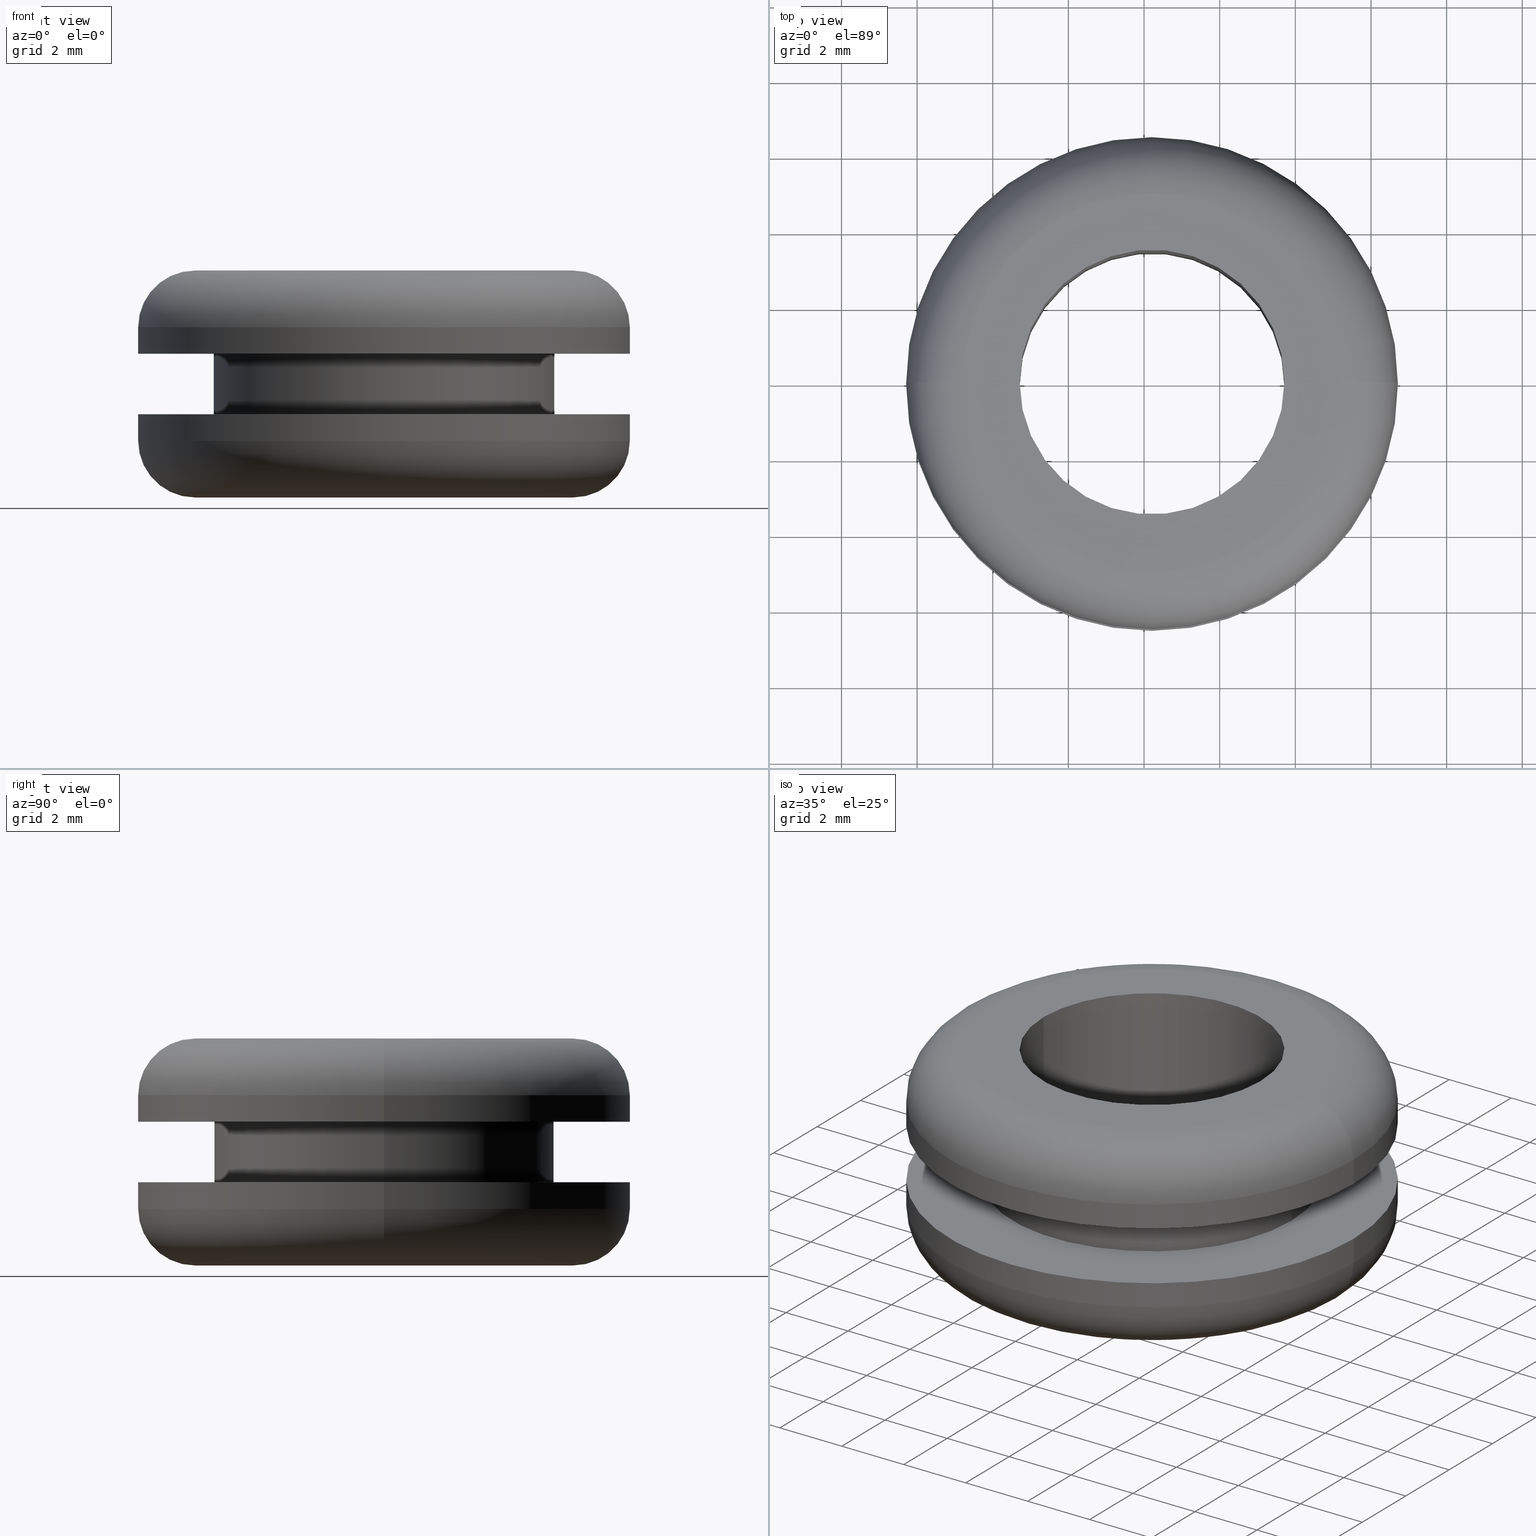
[diagram: canonical four-view strip — front | top / right | iso, engineering-drawing reading convention]
A machine part, canonical four-view strip (front | top / right | iso — engineering-drawing reading convention). The complete STEP part file that produces these views, byte-faithful:
ISO-10303-21;
HEADER;
FILE_DESCRIPTION (( 'STEP AP214' ),
    '1' );
FILE_NAME ('TM_346_8.STEP',
    '2018-06-13T02:53:19',
    ( '' ),
    ( '' ),
    'SwSTEP 2.0',
    'SolidWorks 2015',
    '' );
FILE_SCHEMA (( 'AUTOMOTIVE_DESIGN' ));
ENDSEC;

DATA;
#1 = CARTESIAN_POINT ( 'NONE',  ( 99.71049378546730700, 0.0000000000000000000, 141.7985603604342100 ) ) ;
#2 = AXIS2_PLACEMENT_3D ( 'NONE', #11, #206, #50 ) ;
#3 = CYLINDRICAL_SURFACE ( 'NONE', #84, 6.500000000019892500 ) ;
#4 = DIRECTION ( 'NONE',  ( 0.0000000000000000000, 0.0000000000000000000, -1.000000000000000000 ) ) ;
#5 = ADVANCED_FACE ( 'NONE', ( #397 ), #3, .T. ) ;
#6 = EDGE_LOOP ( 'NONE', ( #242, #103 ) ) ;
#7 = AXIS2_PLACEMENT_3D ( 'NONE', #57, #71, #428 ) ;
#8 = FACE_OUTER_BOUND ( 'NONE', #393, .T. ) ;
#9 = EDGE_CURVE ( 'NONE', #292, #150, #102, .T. ) ;
#10 = VERTEX_POINT ( 'NONE', #156 ) ;
#11 = CARTESIAN_POINT ( 'NONE',  ( 104.2104937854872000, 0.0000000000000000000, 142.4985603604342000 ) ) ;
#12 = DIRECTION ( 'NONE',  ( -1.000000000000000000, 0.0000000000000000000, 0.0000000000000000000 ) ) ;
#13 = ORIENTED_EDGE ( 'NONE', *, *, #14, .T. ) ;
#14 = EDGE_CURVE ( 'NONE', #70, #178, #327, .T. ) ;
#15 = UNCERTAINTY_MEASURE_WITH_UNIT (LENGTH_MEASURE( 1.000000000000000100E-005 ), #272, 'distance_accuracy_value', 'NONE');
#16 = FILL_AREA_STYLE ('',( #330 ) ) ;
#17 = ORIENTED_EDGE ( 'NONE', *, *, #185, .F. ) ;
#18 = EDGE_LOOP ( 'NONE', ( #231, #398, #39, #268 ) ) ;
#19 = AXIS2_PLACEMENT_3D ( 'NONE', #220, #447, #409 ) ;
#20 = DIRECTION ( 'NONE',  ( 0.0000000000000000000, 0.0000000000000000000, -1.000000000000000000 ) ) ;
#21 = FILL_AREA_STYLE ('',( #144 ) ) ;
#22 = CARTESIAN_POINT ( 'NONE',  ( 109.2104937855071000, 7.041719095121637900E-016, 143.9985603604342000 ) ) ;
#23 = CIRCLE ( 'NONE', #75, 5.000000000019891600 ) ;
#24 = VERTEX_POINT ( 'NONE', #406 ) ;
#25 = DIRECTION ( 'NONE',  ( -1.000000000000000000, 0.0000000000000000000, 0.0000000000000000000 ) ) ;
#26 = DIRECTION ( 'NONE',  ( -1.000000000000000000, 0.0000000000000000000, 0.0000000000000000000 ) ) ;
#27 = CARTESIAN_POINT ( 'NONE',  ( 97.71049378546730700, 0.0000000000000000000, 0.0000000000000000000 ) ) ;
#28 = AXIS2_PLACEMENT_3D ( 'NONE', #183, #106, #138 ) ;
#29 = AXIS2_PLACEMENT_3D ( 'NONE', #472, #293, #475 ) ;
#30 = ORIENTED_EDGE ( 'NONE', *, *, #14, .F. ) ;
#31 = DIRECTION ( 'NONE',  ( -1.000000000000000000, 0.0000000000000000000, 0.0000000000000000000 ) ) ;
#32 = UNCERTAINTY_MEASURE_WITH_UNIT (LENGTH_MEASURE( 1.000000000000000100E-005 ), #252, 'distance_accuracy_value', 'NONE');
#33 = VERTEX_POINT ( 'NONE', #337 ) ;
#34 = CARTESIAN_POINT ( 'NONE',  ( 108.7104937855070000, 0.0000000000000000000, 141.7985603604342100 ) ) ;
#35 = TOROIDAL_SURFACE ( 'NONE', #394, 5.000000000019890800, 1.500000000000000000 ) ;
#36 = CIRCLE ( 'NONE', #46, 4.500000000019890800 ) ;
#37 =( NAMED_UNIT ( * ) PLANE_ANGLE_UNIT ( ) SI_UNIT ( $, .RADIAN. ) );
#38 = TOROIDAL_SURFACE ( 'NONE', #2, 5.000000000019890800, 1.500000000000000000 ) ;
#39 = ORIENTED_EDGE ( 'NONE', *, *, #358, .T. ) ;
#40 = ADVANCED_FACE ( 'NONE', ( #201 ), #88, .T. ) ;
#41 = AXIS2_PLACEMENT_3D ( 'NONE', #443, #259, #382 ) ;
#42 = TOROIDAL_SURFACE ( 'NONE', #375, 5.000000000019890800, 1.500000000000000000 ) ;
#43 = EDGE_CURVE ( 'NONE', #56, #62, #195, .T. ) ;
#44 = ORIENTED_EDGE ( 'NONE', *, *, #418, .T. ) ;
#45 = ORIENTED_EDGE ( 'NONE', *, *, #279, .F. ) ;
#46 = AXIS2_PLACEMENT_3D ( 'NONE', #284, #325, #194 ) ;
#47 = CARTESIAN_POINT ( 'NONE',  ( 109.2104937855070000, 0.0000000000000000000, 143.9985603604342000 ) ) ;
#48 = FACE_BOUND ( 'NONE', #107, .T. ) ;
#49 = ORIENTED_EDGE ( 'NONE', *, *, #464, .T. ) ;
#50 = DIRECTION ( 'NONE',  ( -1.000000000000000000, 0.0000000000000000000, 0.0000000000000000000 ) ) ;
#51 = CARTESIAN_POINT ( 'NONE',  ( 108.7104937855071000, 5.510910596187446600E-016, 140.1985603604344100 ) ) ;
#52 = SURFACE_STYLE_FILL_AREA ( #16 ) ;
#53 = AXIS2_PLACEMENT_3D ( 'NONE', #108, #362, #432 ) ;
#54 = AXIS2_PLACEMENT_3D ( 'NONE', #380, #226, #425 ) ;
#55 = ORIENTED_EDGE ( 'NONE', *, *, #403, .F. ) ;
#56 = VERTEX_POINT ( 'NONE', #372 ) ;
#57 = CARTESIAN_POINT ( 'NONE',  ( 104.2104937854872000, 0.0000000000000000000, 137.9985603604342000 ) ) ;
#58 = DIRECTION ( 'NONE',  ( 0.0000000000000000000, 0.0000000000000000000, -1.000000000000000000 ) ) ;
#59 = DIRECTION ( 'NONE',  ( -1.000000000000000000, 0.0000000000000000000, 0.0000000000000000000 ) ) ;
#60 = ORIENTED_EDGE ( 'NONE', *, *, #200, .F. ) ;
#61 = CYLINDRICAL_SURFACE ( 'NONE', #287, 3.500000000019889900 ) ;
#62 = VERTEX_POINT ( 'NONE', #171 ) ;
#63 = DIRECTION ( 'NONE',  ( -0.0000000000000000000, -1.000000000000000000, -0.0000000000000000000 ) ) ;
#64 = PRODUCT_DEFINITION_CONTEXT ( 'detailed design', #395, 'design' ) ;
#65 = AXIS2_PLACEMENT_3D ( 'NONE', #116, #63, #4 ) ;
#66 = DIRECTION ( 'NONE',  ( 0.0000000000000000000, 0.0000000000000000000, -1.000000000000000000 ) ) ;
#67 = CARTESIAN_POINT ( 'NONE',  ( 104.2104937854872000, 0.0000000000000000000, 137.9985603604342000 ) ) ;
#68 = EDGE_CURVE ( 'NONE', #70, #163, #291, .T. ) ;
#69 = DIRECTION ( 'NONE',  ( 0.0000000000000000000, 0.0000000000000000000, -1.000000000000000000 ) ) ;
#70 = VERTEX_POINT ( 'NONE', #438 ) ;
#71 = DIRECTION ( 'NONE',  ( 0.0000000000000000000, 0.0000000000000000000, -1.000000000000000000 ) ) ;
#72 = ADVANCED_BREP_SHAPE_REPRESENTATION ( 'TM_346_8', ( #256, #286 ), #83 ) ;
#73 = FACE_BOUND ( 'NONE', #249, .T. ) ;
#74 = DIRECTION ( 'NONE',  ( 0.0000000000000000000, 0.0000000000000000000, -1.000000000000000000 ) ) ;
#75 = AXIS2_PLACEMENT_3D ( 'NONE', #370, #465, #450 ) ;
#76 = VECTOR ( 'NONE', #190, 1000.000000000000000 ) ;
#77 = CARTESIAN_POINT ( 'NONE',  ( 104.2104937854872000, 0.0000000000000000000, 0.0000000000000000000 ) ) ;
#78 = CYLINDRICAL_SURFACE ( 'NONE', #213, 6.500000000019892500 ) ;
#79 = VERTEX_POINT ( 'NONE', #204 ) ;
#80 = ADVANCED_FACE ( 'NONE', ( #470 ), #78, .T. ) ;
#81 = ADVANCED_FACE ( 'NONE', ( #302 ), #368, .T. ) ;
#82 = VERTEX_POINT ( 'NONE', #232 ) ;
#83 =( GEOMETRIC_REPRESENTATION_CONTEXT ( 3 ) GLOBAL_UNCERTAINTY_ASSIGNED_CONTEXT ( ( #32 ) ) GLOBAL_UNIT_ASSIGNED_CONTEXT ( ( #252, #357, #288 ) ) REPRESENTATION_CONTEXT ( 'NONE', 'WORKASPACE' ) );
#84 = AXIS2_PLACEMENT_3D ( 'NONE', #329, #437, #354 ) ;
#85 = LINE ( 'NONE', #140, #285 ) ;
#86 = CYLINDRICAL_SURFACE ( 'NONE', #100, 4.500000000019890800 ) ;
#87 = DIRECTION ( 'NONE',  ( 0.0000000000000000000, 0.0000000000000000000, -1.000000000000000000 ) ) ;
#88 = CYLINDRICAL_SURFACE ( 'NONE', #164, 6.500000000019892500 ) ;
#89 = ORIENTED_EDGE ( 'NONE', *, *, #159, .F. ) ;
#90 = DIRECTION ( 'NONE',  ( -1.000000000000000000, 0.0000000000000000000, 0.0000000000000000000 ) ) ;
#91 = CARTESIAN_POINT ( 'NONE',  ( 108.7104937855071000, 5.510910596187446600E-016, 141.7985603604342100 ) ) ;
#92 = SURFACE_SIDE_STYLE ('',( #134 ) ) ;
#93 = CIRCLE ( 'NONE', #65, 1.500000000000001300 ) ;
#94 = AXIS2_PLACEMENT_3D ( 'NONE', #401, #109, #303 ) ;
#95 = DIRECTION ( 'NONE',  ( -1.224646799147353200E-016, 1.000000000000000000, 0.0000000000000000000 ) ) ;
#96 = ORIENTED_EDGE ( 'NONE', *, *, #279, .T. ) ;
#97 = DIRECTION ( 'NONE',  ( 0.0000000000000000000, 0.0000000000000000000, -1.000000000000000000 ) ) ;
#98 = EDGE_CURVE ( 'NONE', #421, #163, #457, .T. ) ;
#99 = CARTESIAN_POINT ( 'NONE',  ( 104.2104937854872000, 0.0000000000000000000, 139.4985603604342000 ) ) ;
#100 = AXIS2_PLACEMENT_3D ( 'NONE', #221, #211, #219 ) ;
#101 = DIRECTION ( 'NONE',  ( -1.000000000000000000, 0.0000000000000000000, 0.0000000000000000000 ) ) ;
#102 = CIRCLE ( 'NONE', #54, 4.500000000019890800 ) ;
#103 = ORIENTED_EDGE ( 'NONE', *, *, #454, .F. ) ;
#104 = LINE ( 'NONE', #254, #240 ) ;
#105 = DIRECTION ( 'NONE',  ( -1.000000000000000000, 0.0000000000000000000, 0.0000000000000000000 ) ) ;
#106 = DIRECTION ( 'NONE',  ( 0.0000000000000000000, 0.0000000000000000000, -1.000000000000000000 ) ) ;
#107 = EDGE_LOOP ( 'NONE', ( #202, #13 ) ) ;
#108 = CARTESIAN_POINT ( 'NONE',  ( 99.21049378546730700, 0.0000000000000000000, 139.4985603604342000 ) ) ;
#109 = DIRECTION ( 'NONE',  ( 0.0000000000000000000, 0.0000000000000000000, -1.000000000000000000 ) ) ;
#110 = DIRECTION ( 'NONE',  ( -1.000000000000000000, 0.0000000000000000000, 0.0000000000000000000 ) ) ;
#111 = AXIS2_PLACEMENT_3D ( 'NONE', #67, #248, #26 ) ;
#112 = EDGE_LOOP ( 'NONE', ( #153, #460, #96, #17 ) ) ;
#113 = EDGE_LOOP ( 'NONE', ( #402, #429, #89, #238 ) ) ;
#114 = CARTESIAN_POINT ( 'NONE',  ( 110.7104937855071000, 7.960204194482153500E-016, 0.0000000000000000000 ) ) ;
#115 = ADVANCED_FACE ( 'NONE', ( #177 ), #61, .F. ) ;
#116 = CARTESIAN_POINT ( 'NONE',  ( 99.21049378546730700, 0.0000000000000000000, 142.4985603604342000 ) ) ;
#117 = ORIENTED_EDGE ( 'NONE', *, *, #441, .T. ) ;
#118 = AXIS2_PLACEMENT_3D ( 'NONE', #193, #58, #110 ) ;
#119 = ADVANCED_FACE ( 'NONE', ( #280 ), #353, .F. ) ;
#120 = EDGE_CURVE ( 'NONE', #33, #338, #449, .T. ) ;
#121 = CIRCLE ( 'NONE', #145, 4.500000000019890800 ) ;
#122 = ORIENTED_EDGE ( 'NONE', *, *, #209, .T. ) ;
#123 = ORIENTED_EDGE ( 'NONE', *, *, #426, .T. ) ;
#124 = STYLED_ITEM ( 'NONE', ( #301 ), #256 ) ;
#125 = CARTESIAN_POINT ( 'NONE',  ( 109.2104937855071000, 6.123233995761125300E-016, 142.4985603604342000 ) ) ;
#126 = CARTESIAN_POINT ( 'NONE',  ( 107.7104937855071000, 4.286263797040094600E-016, 137.9985603604342000 ) ) ;
#127 = CARTESIAN_POINT ( 'NONE',  ( 104.2104937854872000, 0.0000000000000000000, 137.9985603604342000 ) ) ;
#128 = CARTESIAN_POINT ( 'NONE',  ( 104.2104937854872000, 0.0000000000000000000, 139.4985603604342000 ) ) ;
#129 = VECTOR ( 'NONE', #378, 1000.000000000000000 ) ;
#130 = CARTESIAN_POINT ( 'NONE',  ( 104.2104937854872000, 0.0000000000000000000, 0.0000000000000000000 ) ) ;
#131 = ORIENTED_EDGE ( 'NONE', *, *, #387, .F. ) ;
#132 = EDGE_CURVE ( 'NONE', #150, #188, #168, .T. ) ;
#133 = SHAPE_DEFINITION_REPRESENTATION ( #320, #72 ) ;
#134 = SURFACE_STYLE_FILL_AREA ( #21 ) ;
#135 = STYLED_ITEM ( 'NONE', ( #260 ), #72 ) ;
#136 = AXIS2_PLACEMENT_3D ( 'NONE', #127, #143, #151 ) ;
#137 = EDGE_LOOP ( 'NONE', ( #384, #423 ) ) ;
#138 = DIRECTION ( 'NONE',  ( -1.000000000000000000, 0.0000000000000000000, 0.0000000000000000000 ) ) ;
#139 = CARTESIAN_POINT ( 'NONE',  ( 104.2104937854872000, 0.0000000000000000000, 0.0000000000000000000 ) ) ;
#140 = CARTESIAN_POINT ( 'NONE',  ( 97.71049378546730700, 0.0000000000000000000, 0.0000000000000000000 ) ) ;
#141 = CIRCLE ( 'NONE', #431, 6.500000000019892500 ) ;
#142 = EDGE_LOOP ( 'NONE', ( #444, #361, #347, #455 ) ) ;
#143 = DIRECTION ( 'NONE',  ( 0.0000000000000000000, 0.0000000000000000000, -1.000000000000000000 ) ) ;
#144 = FILL_AREA_STYLE_COLOUR ( '', #311 ) ;
#145 = AXIS2_PLACEMENT_3D ( 'NONE', #412, #366, #59 ) ;
#146 = CARTESIAN_POINT ( 'NONE',  ( 104.2104937854872000, 0.0000000000000000000, 141.7985603604342100 ) ) ;
#147 = CIRCLE ( 'NONE', #349, 6.500000000019892500 ) ;
#148 = FACE_OUTER_BOUND ( 'NONE', #18, .T. ) ;
#149 = EDGE_CURVE ( 'NONE', #350, #24, #390, .T. ) ;
#150 = VERTEX_POINT ( 'NONE', #91 ) ;
#151 = DIRECTION ( 'NONE',  ( -1.000000000000000000, 0.0000000000000000000, 0.0000000000000000000 ) ) ;
#152 = DIRECTION ( 'NONE',  ( 0.0000000000000000000, 0.0000000000000000000, -1.000000000000000000 ) ) ;
#153 = ORIENTED_EDGE ( 'NONE', *, *, #174, .F. ) ;
#154 = PRESENTATION_LAYER_ASSIGNMENT (  '', '', ( #124 ) ) ;
#155 = DIRECTION ( 'NONE',  ( -1.000000000000000000, 0.0000000000000000000, 0.0000000000000000000 ) ) ;
#156 = CARTESIAN_POINT ( 'NONE',  ( 110.7104937855071000, 7.960204194482149600E-016, 142.4985603604342000 ) ) ;
#157 = CIRCLE ( 'NONE', #340, 4.500000000019890800 ) ;
#158 = ORIENTED_EDGE ( 'NONE', *, *, #255, .T. ) ;
#159 = EDGE_CURVE ( 'NONE', #355, #188, #157, .T. ) ;
#160 = ADVANCED_FACE ( 'NONE', ( #48, #274 ), #166, .T. ) ;
#161 = ORIENTED_EDGE ( 'NONE', *, *, #324, .F. ) ;
#162 = PRESENTATION_LAYER_ASSIGNMENT (  '', '', ( #135 ) ) ;
#163 = VERTEX_POINT ( 'NONE', #126 ) ;
#164 = AXIS2_PLACEMENT_3D ( 'NONE', #294, #235, #179 ) ;
#165 = CIRCLE ( 'NONE', #41, 6.500000000019892500 ) ;
#166 = PLANE ( 'NONE',  #407 ) ;
#167 = VERTEX_POINT ( 'NONE', #170 ) ;
#168 = LINE ( 'NONE', #436, #262 ) ;
#169 = EDGE_LOOP ( 'NONE', ( #410, #199, #122, #313 ) ) ;
#170 = CARTESIAN_POINT ( 'NONE',  ( 97.71049378546730700, 0.0000000000000000000, 140.1985603604344100 ) ) ;
#171 = CARTESIAN_POINT ( 'NONE',  ( 99.21049378546730700, 0.0000000000000000000, 137.9985603604342000 ) ) ;
#172 =( NAMED_UNIT ( * ) PLANE_ANGLE_UNIT ( ) SI_UNIT ( $, .RADIAN. ) );
#173 = ORIENTED_EDGE ( 'NONE', *, *, #227, .F. ) ;
#174 = EDGE_CURVE ( 'NONE', #338, #10, #434, .T. ) ;
#175 = CIRCLE ( 'NONE', #53, 1.500000000000001300 ) ;
#176 = MECHANICAL_DESIGN_GEOMETRIC_PRESENTATION_REPRESENTATION (  '', ( #124 ), #203 ) ;
#177 = FACE_OUTER_BOUND ( 'NONE', #451, .T. ) ;
#178 = VERTEX_POINT ( 'NONE', #424 ) ;
#179 = DIRECTION ( 'NONE',  ( -1.000000000000000000, 0.0000000000000000000, 0.0000000000000000000 ) ) ;
#180 = CARTESIAN_POINT ( 'NONE',  ( 104.2104937854872000, 0.0000000000000000000, 0.0000000000000000000 ) ) ;
#181 = CIRCLE ( 'NONE', #297, 1.500000000000001300 ) ;
#182 = CARTESIAN_POINT ( 'NONE',  ( 104.2104937854872000, 0.0000000000000000000, 0.0000000000000000000 ) ) ;
#183 = CARTESIAN_POINT ( 'NONE',  ( 107.7104937855070100, 0.0000000000000000000, 137.9985603604342000 ) ) ;
#184 = CIRCLE ( 'NONE', #440, 6.500000000019892500 ) ;
#185 = EDGE_CURVE ( 'NONE', #10, #82, #141, .T. ) ;
#186 = CARTESIAN_POINT ( 'NONE',  ( 97.71049378546730700, 0.0000000000000000000, 141.7985603604342100 ) ) ;
#187 = DIRECTION ( 'NONE',  ( -1.000000000000000000, 0.0000000000000000000, 0.0000000000000000000 ) ) ;
#188 = VERTEX_POINT ( 'NONE', #51 ) ;
#189 = DIRECTION ( 'NONE',  ( 0.0000000000000000000, 0.0000000000000000000, -1.000000000000000000 ) ) ;
#190 = DIRECTION ( 'NONE',  ( 0.0000000000000000000, 0.0000000000000000000, -1.000000000000000000 ) ) ;
#191 = MECHANICAL_DESIGN_GEOMETRIC_PRESENTATION_REPRESENTATION (  '', ( #135 ), #212 ) ;
#192 = AXIS2_PLACEMENT_3D ( 'NONE', #271, #207, #12 ) ;
#193 = CARTESIAN_POINT ( 'NONE',  ( 104.2104937854872000, 0.0000000000000000000, 143.9985603604342000 ) ) ;
#194 = DIRECTION ( 'NONE',  ( -1.000000000000000000, 0.0000000000000000000, 0.0000000000000000000 ) ) ;
#195 = CIRCLE ( 'NONE', #136, 5.000000000019891600 ) ;
#196 = EDGE_LOOP ( 'NONE', ( #131, #257, #217, #318 ) ) ;
#197 = ADVANCED_FACE ( 'NONE', ( #247 ), #38, .T. ) ;
#198 = AXIS2_PLACEMENT_3D ( 'NONE', #99, #66, #25 ) ;
#199 = ORIENTED_EDGE ( 'NONE', *, *, #299, .T. ) ;
#200 = EDGE_CURVE ( 'NONE', #216, #167, #422, .T. ) ;
#201 = FACE_OUTER_BOUND ( 'NONE', #258, .T. ) ;
#202 = ORIENTED_EDGE ( 'NONE', *, *, #282, .T. ) ;
#203 =( GEOMETRIC_REPRESENTATION_CONTEXT ( 3 ) GLOBAL_UNCERTAINTY_ASSIGNED_CONTEXT ( ( #15 ) ) GLOBAL_UNIT_ASSIGNED_CONTEXT ( ( #272, #37, #267 ) ) REPRESENTATION_CONTEXT ( 'NONE', 'WORKASPACE' ) );
#204 = CARTESIAN_POINT ( 'NONE',  ( 110.7104937855071000, 7.960204194482149600E-016, 141.7985603604342100 ) ) ;
#205 =( LENGTH_UNIT ( ) NAMED_UNIT ( * ) SI_UNIT ( .MILLI., .METRE. ) );
#206 = DIRECTION ( 'NONE',  ( 0.0000000000000000000, 0.0000000000000000000, -1.000000000000000000 ) ) ;
#207 = DIRECTION ( 'NONE',  ( 0.0000000000000000000, 0.0000000000000000000, -1.000000000000000000 ) ) ;
#208 = DIRECTION ( 'NONE',  ( 0.0000000000000000000, 0.0000000000000000000, -1.000000000000000000 ) ) ;
#209 = EDGE_CURVE ( 'NONE', #292, #355, #345, .T. ) ;
#210 = EDGE_LOOP ( 'NONE', ( #123, #307 ) ) ;
#211 = DIRECTION ( 'NONE',  ( 0.0000000000000000000, 0.0000000000000000000, -1.000000000000000000 ) ) ;
#212 =( GEOMETRIC_REPRESENTATION_CONTEXT ( 3 ) GLOBAL_UNCERTAINTY_ASSIGNED_CONTEXT ( ( #376 ) ) GLOBAL_UNIT_ASSIGNED_CONTEXT ( ( #205, #172, #365 ) ) REPRESENTATION_CONTEXT ( 'NONE', 'WORKASPACE' ) );
#213 = AXIS2_PLACEMENT_3D ( 'NONE', #182, #411, #261 ) ;
#214 = FACE_OUTER_BOUND ( 'NONE', #326, .T. ) ;
#215 = DIRECTION ( 'NONE',  ( -1.224646799147353200E-016, 1.000000000000000000, 0.0000000000000000000 ) ) ;
#216 = VERTEX_POINT ( 'NONE', #298 ) ;
#217 = ORIENTED_EDGE ( 'NONE', *, *, #477, .T. ) ;
#218 = SURFACE_STYLE_USAGE ( .BOTH. , #92 ) ;
#219 = DIRECTION ( 'NONE',  ( -1.000000000000000000, 0.0000000000000000000, 0.0000000000000000000 ) ) ;
#220 = CARTESIAN_POINT ( 'NONE',  ( 104.2104937854872000, 0.0000000000000000000, 142.4985603604342000 ) ) ;
#221 = CARTESIAN_POINT ( 'NONE',  ( 104.2104937854872000, 0.0000000000000000000, 0.0000000000000000000 ) ) ;
#222 = CLOSED_SHELL ( 'NONE', ( #119, #416, #5, #237, #80, #276, #452, #413, #306, #386, #81, #348, #40, #197, #160, #115 ) ) ;
#223 = AXIS2_PLACEMENT_3D ( 'NONE', #180, #295, #187 ) ;
#224 = CARTESIAN_POINT ( 'NONE',  ( 99.71049378546730700, 0.0000000000000000000, 0.0000000000000000000 ) ) ;
#225 = CIRCLE ( 'NONE', #7, 3.500000000019889900 ) ;
#226 = DIRECTION ( 'NONE',  ( 0.0000000000000000000, 0.0000000000000000000, -1.000000000000000000 ) ) ;
#227 = EDGE_CURVE ( 'NONE', #82, #10, #331, .T. ) ;
#228 = DIRECTION ( 'NONE',  ( 0.0000000000000000000, 0.0000000000000000000, -1.000000000000000000 ) ) ;
#229 = DIRECTION ( 'NONE',  ( 0.0000000000000000000, 0.0000000000000000000, 1.000000000000000000 ) ) ;
#230 = ORIENTED_EDGE ( 'NONE', *, *, #98, .T. ) ;
#231 = ORIENTED_EDGE ( 'NONE', *, *, #308, .F. ) ;
#232 = CARTESIAN_POINT ( 'NONE',  ( 97.71049378546730700, 0.0000000000000000000, 142.4985603604342000 ) ) ;
#233 = CARTESIAN_POINT ( 'NONE',  ( 99.71049378546730700, 0.0000000000000000000, 140.1985603604344100 ) ) ;
#234 = DIRECTION ( 'NONE',  ( -1.000000000000000000, -1.224646799147352000E-016, 0.0000000000000000000 ) ) ;
#235 = DIRECTION ( 'NONE',  ( 0.0000000000000000000, 0.0000000000000000000, -1.000000000000000000 ) ) ;
#236 = CARTESIAN_POINT ( 'NONE',  ( 110.7104937855070000, 0.0000000000000000000, 140.1985603604344100 ) ) ;
#237 = ADVANCED_FACE ( 'NONE', ( #414 ), #86, .T. ) ;
#238 = ORIENTED_EDGE ( 'NONE', *, *, #209, .F. ) ;
#239 = EDGE_CURVE ( 'NONE', #338, #33, #23, .T. ) ;
#240 = VECTOR ( 'NONE', #433, 1000.000000000000000 ) ;
#241 = AXIS2_PLACEMENT_3D ( 'NONE', #130, #251, #474 ) ;
#242 = ORIENTED_EDGE ( 'NONE', *, *, #98, .F. ) ;
#243 = ORIENTED_EDGE ( 'NONE', *, *, #68, .F. ) ;
#244 = FACE_OUTER_BOUND ( 'NONE', #196, .T. ) ;
#245 = DIRECTION ( 'NONE',  ( -1.000000000000000000, 0.0000000000000000000, 0.0000000000000000000 ) ) ;
#246 = DIRECTION ( 'NONE',  ( 0.0000000000000000000, 0.0000000000000000000, -1.000000000000000000 ) ) ;
#247 = FACE_OUTER_BOUND ( 'NONE', #112, .T. ) ;
#248 = DIRECTION ( 'NONE',  ( 0.0000000000000000000, 0.0000000000000000000, -1.000000000000000000 ) ) ;
#249 = EDGE_LOOP ( 'NONE', ( #445, #158 ) ) ;
#250 = DIRECTION ( 'NONE',  ( -1.000000000000000000, 0.0000000000000000000, 0.0000000000000000000 ) ) ;
#251 = DIRECTION ( 'NONE',  ( 0.0000000000000000000, 0.0000000000000000000, -1.000000000000000000 ) ) ;
#252 =( LENGTH_UNIT ( ) NAMED_UNIT ( * ) SI_UNIT ( .MILLI., .METRE. ) );
#253 = COLOUR_RGB ( '',0.7921568627450980000, 0.8196078431372548800, 0.9333333333333333500 ) ;
#254 = CARTESIAN_POINT ( 'NONE',  ( 100.7104937854673200, 0.0000000000000000000, 0.0000000000000000000 ) ) ;
#255 = EDGE_CURVE ( 'NONE', #188, #355, #36, .T. ) ;
#256 = MANIFOLD_SOLID_BREP ( '���߰�1', #222 ) ;
#257 = ORIENTED_EDGE ( 'NONE', *, *, #149, .T. ) ;
#258 = EDGE_LOOP ( 'NONE', ( #161, #269, #49, #278 ) ) ;
#259 = DIRECTION ( 'NONE',  ( 0.0000000000000000000, 0.0000000000000000000, -1.000000000000000000 ) ) ;
#260 = PRESENTATION_STYLE_ASSIGNMENT (( #218 ) ) ;
#261 = DIRECTION ( 'NONE',  ( -1.000000000000000000, 0.0000000000000000000, 0.0000000000000000000 ) ) ;
#262 = VECTOR ( 'NONE', #379, 1000.000000000000000 ) ;
#263 = ORIENTED_EDGE ( 'NONE', *, *, #120, .F. ) ;
#264 = EDGE_CURVE ( 'NONE', #167, #216, #165, .T. ) ;
#265 = DIRECTION ( 'NONE',  ( 1.000000000000000000, 0.0000000000000000000, 0.0000000000000000000 ) ) ;
#266 = DIRECTION ( 'NONE',  ( -1.000000000000000000, 0.0000000000000000000, 0.0000000000000000000 ) ) ;
#267 =( NAMED_UNIT ( * ) SI_UNIT ( $, .STERADIAN. ) SOLID_ANGLE_UNIT ( ) );
#268 = ORIENTED_EDGE ( 'NONE', *, *, #149, .F. ) ;
#269 = ORIENTED_EDGE ( 'NONE', *, *, #185, .T. ) ;
#270 = AXIS2_PLACEMENT_3D ( 'NONE', #128, #246, #90 ) ;
#271 = CARTESIAN_POINT ( 'NONE',  ( 104.2104937854872000, 0.0000000000000000000, 143.9985603604342000 ) ) ;
#272 =( LENGTH_UNIT ( ) NAMED_UNIT ( * ) SI_UNIT ( .MILLI., .METRE. ) );
#273 = PLANE ( 'NONE',  #321 ) ;
#274 = FACE_OUTER_BOUND ( 'NONE', #351, .T. ) ;
#275 = ORIENTED_EDGE ( 'NONE', *, *, #387, .T. ) ;
#276 = ADVANCED_FACE ( 'NONE', ( #214 ), #373, .T. ) ;
#277 = AXIS2_PLACEMENT_3D ( 'NONE', #34, #20, #101 ) ;
#278 = ORIENTED_EDGE ( 'NONE', *, *, #418, .F. ) ;
#279 = EDGE_CURVE ( 'NONE', #33, #82, #93, .T. ) ;
#280 = FACE_OUTER_BOUND ( 'NONE', #360, .T. ) ;
#281 = ORIENTED_EDGE ( 'NONE', *, *, #282, .F. ) ;
#282 = EDGE_CURVE ( 'NONE', #178, #70, #322, .T. ) ;
#283 = EDGE_LOOP ( 'NONE', ( #448, #435, #173, #45 ) ) ;
#284 = CARTESIAN_POINT ( 'NONE',  ( 104.2104937854872000, 0.0000000000000000000, 140.1985603604344100 ) ) ;
#285 = VECTOR ( 'NONE', #74, 1000.000000000000000 ) ;
#286 = AXIS2_PLACEMENT_3D ( 'NONE', #439, #462, #371 ) ;
#287 = AXIS2_PLACEMENT_3D ( 'NONE', #139, #458, #266 ) ;
#288 =( NAMED_UNIT ( * ) SI_UNIT ( $, .STERADIAN. ) SOLID_ANGLE_UNIT ( ) );
#289 = CARTESIAN_POINT ( 'NONE',  ( 104.2104937854872000, 0.0000000000000000000, 140.1985603604344100 ) ) ;
#290 = FACE_BOUND ( 'NONE', #6, .T. ) ;
#291 = LINE ( 'NONE', #333, #383 ) ;
#292 = VERTEX_POINT ( 'NONE', #1 ) ;
#293 = DIRECTION ( 'NONE',  ( 0.0000000000000000000, 0.0000000000000000000, -1.000000000000000000 ) ) ;
#294 = CARTESIAN_POINT ( 'NONE',  ( 104.2104937854872000, 0.0000000000000000000, 0.0000000000000000000 ) ) ;
#295 = DIRECTION ( 'NONE',  ( 0.0000000000000000000, 0.0000000000000000000, -1.000000000000000000 ) ) ;
#296 = ORIENTED_EDGE ( 'NONE', *, *, #403, .T. ) ;
#297 = AXIS2_PLACEMENT_3D ( 'NONE', #344, #215, #234 ) ;
#298 = CARTESIAN_POINT ( 'NONE',  ( 110.7104937855071000, 7.960204194482149600E-016, 140.1985603604344100 ) ) ;
#299 = EDGE_CURVE ( 'NONE', #150, #292, #121, .T. ) ;
#300 = FACE_OUTER_BOUND ( 'NONE', #210, .T. ) ;
#301 = PRESENTATION_STYLE_ASSIGNMENT (( #385 ) ) ;
#302 = FACE_OUTER_BOUND ( 'NONE', #169, .T. ) ;
#303 = DIRECTION ( 'NONE',  ( -1.000000000000000000, 0.0000000000000000000, 0.0000000000000000000 ) ) ;
#304 = PLANE ( 'NONE',  #28 ) ;
#305 = DIRECTION ( 'NONE',  ( -1.000000000000000000, 0.0000000000000000000, 0.0000000000000000000 ) ) ;
#306 = ADVANCED_FACE ( 'NONE', ( #148 ), #364, .T. ) ;
#307 = ORIENTED_EDGE ( 'NONE', *, *, #43, .T. ) ;
#308 = EDGE_CURVE ( 'NONE', #216, #350, #453, .T. ) ;
#309 = PRODUCT_DEFINITION ( 'UNKNOWN', '', #314, #64 ) ;
#310 = AXIS2_PLACEMENT_3D ( 'NONE', #77, #189, #105 ) ;
#311 = COLOUR_RGB ( '',0.7921568627450980000, 0.8196078431372548800, 0.9333333333333333500 ) ;
#312 = ORIENTED_EDGE ( 'NONE', *, *, #477, .F. ) ;
#313 = ORIENTED_EDGE ( 'NONE', *, *, #255, .F. ) ;
#314 = PRODUCT_DEFINITION_FORMATION_WITH_SPECIFIED_SOURCE ( 'ANY', '', #315, .NOT_KNOWN. ) ;
#315 = PRODUCT ( 'TM_346_8', 'TM_346_8', '', ( #442 ) ) ;
#316 = DIRECTION ( 'NONE',  ( 1.000000000000000000, 0.0000000000000000000, 0.0000000000000000000 ) ) ;
#317 = FACE_OUTER_BOUND ( 'NONE', #283, .T. ) ;
#318 = ORIENTED_EDGE ( 'NONE', *, *, #43, .F. ) ;
#319 = DIRECTION ( 'NONE',  ( 0.0000000000000000000, 0.0000000000000000000, 1.000000000000000000 ) ) ;
#320 = PRODUCT_DEFINITION_SHAPE ( 'NONE', 'NONE',  #309 ) ;
#321 = AXIS2_PLACEMENT_3D ( 'NONE', #236, #229, #265 ) ;
#322 = CIRCLE ( 'NONE', #118, 3.500000000019889900 ) ;
#323 = CARTESIAN_POINT ( 'NONE',  ( 104.2104937854872000, 0.0000000000000000000, 137.9985603604342000 ) ) ;
#324 = EDGE_CURVE ( 'NONE', #10, #79, #381, .T. ) ;
#325 = DIRECTION ( 'NONE',  ( 0.0000000000000000000, 0.0000000000000000000, -1.000000000000000000 ) ) ;
#326 = EDGE_LOOP ( 'NONE', ( #430, #275, #388, #312 ) ) ;
#327 = CIRCLE ( 'NONE', #29, 3.500000000019889900 ) ;
#328 = CARTESIAN_POINT ( 'NONE',  ( 100.7104937854673200, 0.0000000000000000000, 137.9985603604342000 ) ) ;
#329 = CARTESIAN_POINT ( 'NONE',  ( 104.2104937854872000, 0.0000000000000000000, 0.0000000000000000000 ) ) ;
#330 = FILL_AREA_STYLE_COLOUR ( '', #253 ) ;
#331 = CIRCLE ( 'NONE', #19, 6.500000000019892500 ) ;
#332 = ORIENTED_EDGE ( 'NONE', *, *, #454, .T. ) ;
#333 = CARTESIAN_POINT ( 'NONE',  ( 107.7104937855071000, 4.286263797040094600E-016, 0.0000000000000000000 ) ) ;
#334 = EDGE_CURVE ( 'NONE', #24, #350, #466, .T. ) ;
#335 = FACE_OUTER_BOUND ( 'NONE', #420, .T. ) ;
#336 = APPLICATION_PROTOCOL_DEFINITION ( 'draft international standard', 'automotive_design', 1998, #395 ) ;
#337 = CARTESIAN_POINT ( 'NONE',  ( 99.21049378546730700, 0.0000000000000000000, 143.9985603604342000 ) ) ;
#338 = VERTEX_POINT ( 'NONE', #22 ) ;
#339 = ORIENTED_EDGE ( 'NONE', *, *, #68, .T. ) ;
#340 = AXIS2_PLACEMENT_3D ( 'NONE', #461, #356, #245 ) ;
#341 = CARTESIAN_POINT ( 'NONE',  ( 104.2104937854872000, 0.0000000000000000000, 139.4985603604342000 ) ) ;
#342 = CARTESIAN_POINT ( 'NONE',  ( 104.2104937854872000, 0.0000000000000000000, 141.7985603604342100 ) ) ;
#343 = PRODUCT_RELATED_PRODUCT_CATEGORY ( 'part', '', ( #315 ) ) ;
#344 = CARTESIAN_POINT ( 'NONE',  ( 109.2104937855071000, 6.123233995761125300E-016, 139.4985603604342000 ) ) ;
#345 = LINE ( 'NONE', #224, #129 ) ;
#346 = CARTESIAN_POINT ( 'NONE',  ( 110.7104937855071000, 7.960204194482153500E-016, 0.0000000000000000000 ) ) ;
#347 = ORIENTED_EDGE ( 'NONE', *, *, #334, .F. ) ;
#348 = ADVANCED_FACE ( 'NONE', ( #8, #473 ), #478, .T. ) ;
#349 = AXIS2_PLACEMENT_3D ( 'NONE', #146, #400, #305 ) ;
#350 = VERTEX_POINT ( 'NONE', #446 ) ;
#351 = EDGE_LOOP ( 'NONE', ( #263, #463 ) ) ;
#352 = CARTESIAN_POINT ( 'NONE',  ( 104.2104937854872000, 0.0000000000000000000, 142.4985603604342000 ) ) ;
#353 = CYLINDRICAL_SURFACE ( 'NONE', #310, 3.500000000019889900 ) ;
#354 = DIRECTION ( 'NONE',  ( -1.000000000000000000, 0.0000000000000000000, 0.0000000000000000000 ) ) ;
#355 = VERTEX_POINT ( 'NONE', #233 ) ;
#356 = DIRECTION ( 'NONE',  ( 0.0000000000000000000, 0.0000000000000000000, -1.000000000000000000 ) ) ;
#357 =( NAMED_UNIT ( * ) PLANE_ANGLE_UNIT ( ) SI_UNIT ( $, .RADIAN. ) );
#358 = EDGE_CURVE ( 'NONE', #167, #24, #85, .T. ) ;
#359 = DIRECTION ( 'NONE',  ( 0.0000000000000000000, 0.0000000000000000000, -1.000000000000000000 ) ) ;
#360 = EDGE_LOOP ( 'NONE', ( #30, #339, #332, #55 ) ) ;
#361 = ORIENTED_EDGE ( 'NONE', *, *, #308, .T. ) ;
#362 = DIRECTION ( 'NONE',  ( -0.0000000000000000000, -1.000000000000000000, -0.0000000000000000000 ) ) ;
#363 = DIRECTION ( 'NONE',  ( -1.000000000000000000, 0.0000000000000000000, 0.0000000000000000000 ) ) ;
#364 = CYLINDRICAL_SURFACE ( 'NONE', #223, 6.500000000019892500 ) ;
#365 =( NAMED_UNIT ( * ) SI_UNIT ( $, .STERADIAN. ) SOLID_ANGLE_UNIT ( ) );
#366 = DIRECTION ( 'NONE',  ( 0.0000000000000000000, 0.0000000000000000000, -1.000000000000000000 ) ) ;
#367 = DIRECTION ( 'NONE',  ( 0.0000000000000000000, 0.0000000000000000000, -1.000000000000000000 ) ) ;
#368 = CYLINDRICAL_SURFACE ( 'NONE', #241, 4.500000000019890800 ) ;
#369 = ORIENTED_EDGE ( 'NONE', *, *, #227, .T. ) ;
#370 = CARTESIAN_POINT ( 'NONE',  ( 104.2104937854872000, 0.0000000000000000000, 143.9985603604342000 ) ) ;
#371 = DIRECTION ( 'NONE',  ( 1.000000000000000000, 0.0000000000000000000, 0.0000000000000000000 ) ) ;
#372 = CARTESIAN_POINT ( 'NONE',  ( 109.2104937855071000, 7.041719095121637900E-016, 137.9985603604342000 ) ) ;
#373 = TOROIDAL_SURFACE ( 'NONE', #94, 5.000000000019890800, 1.500000000000000000 ) ;
#374 = DIRECTION ( 'NONE',  ( -1.000000000000000000, 0.0000000000000000000, 0.0000000000000000000 ) ) ;
#375 = AXIS2_PLACEMENT_3D ( 'NONE', #341, #359, #399 ) ;
#376 = UNCERTAINTY_MEASURE_WITH_UNIT (LENGTH_MEASURE( 1.000000000000000100E-005 ), #205, 'distance_accuracy_value', 'NONE');
#377 = ORIENTED_EDGE ( 'NONE', *, *, #264, .F. ) ;
#378 = DIRECTION ( 'NONE',  ( 0.0000000000000000000, 0.0000000000000000000, -1.000000000000000000 ) ) ;
#379 = DIRECTION ( 'NONE',  ( 0.0000000000000000000, 0.0000000000000000000, -1.000000000000000000 ) ) ;
#380 = CARTESIAN_POINT ( 'NONE',  ( 104.2104937854872000, 0.0000000000000000000, 141.7985603604342100 ) ) ;
#381 = LINE ( 'NONE', #114, #405 ) ;
#382 = DIRECTION ( 'NONE',  ( -1.000000000000000000, 0.0000000000000000000, 0.0000000000000000000 ) ) ;
#383 = VECTOR ( 'NONE', #208, 1000.000000000000000 ) ;
#384 = ORIENTED_EDGE ( 'NONE', *, *, #9, .F. ) ;
#385 = SURFACE_STYLE_USAGE ( .BOTH. , #404 ) ;
#386 = ADVANCED_FACE ( 'NONE', ( #73, #335 ), #273, .T. ) ;
#387 = EDGE_CURVE ( 'NONE', #350, #56, #181, .T. ) ;
#388 = ORIENTED_EDGE ( 'NONE', *, *, #426, .F. ) ;
#389 = AXIS2_PLACEMENT_3D ( 'NONE', #125, #95, #392 ) ;
#390 = CIRCLE ( 'NONE', #270, 6.500000000019892500 ) ;
#391 = EDGE_LOOP ( 'NONE', ( #369, #476, #408, #471 ) ) ;
#392 = DIRECTION ( 'NONE',  ( -1.000000000000000000, -1.224646799147352000E-016, 0.0000000000000000000 ) ) ;
#393 = EDGE_LOOP ( 'NONE', ( #117, #44 ) ) ;
#394 = AXIS2_PLACEMENT_3D ( 'NONE', #469, #69, #31 ) ;
#395 = APPLICATION_CONTEXT ( 'automotive_design' ) ;
#396 = VECTOR ( 'NONE', #152, 1000.000000000000000 ) ;
#397 = FACE_OUTER_BOUND ( 'NONE', #391, .T. ) ;
#398 = ORIENTED_EDGE ( 'NONE', *, *, #200, .T. ) ;
#399 = DIRECTION ( 'NONE',  ( -1.000000000000000000, 0.0000000000000000000, 0.0000000000000000000 ) ) ;
#400 = DIRECTION ( 'NONE',  ( 0.0000000000000000000, 0.0000000000000000000, -1.000000000000000000 ) ) ;
#401 = CARTESIAN_POINT ( 'NONE',  ( 104.2104937854872000, 0.0000000000000000000, 139.4985603604342000 ) ) ;
#402 = ORIENTED_EDGE ( 'NONE', *, *, #9, .T. ) ;
#403 = EDGE_CURVE ( 'NONE', #178, #421, #104, .T. ) ;
#404 = SURFACE_SIDE_STYLE ('',( #52 ) ) ;
#405 = VECTOR ( 'NONE', #367, 1000.000000000000000 ) ;
#406 = CARTESIAN_POINT ( 'NONE',  ( 97.71049378546730700, 0.0000000000000000000, 139.4985603604342000 ) ) ;
#407 = AXIS2_PLACEMENT_3D ( 'NONE', #47, #319, #316 ) ;
#408 = ORIENTED_EDGE ( 'NONE', *, *, #441, .F. ) ;
#409 = DIRECTION ( 'NONE',  ( -1.000000000000000000, 0.0000000000000000000, 0.0000000000000000000 ) ) ;
#410 = ORIENTED_EDGE ( 'NONE', *, *, #132, .F. ) ;
#411 = DIRECTION ( 'NONE',  ( 0.0000000000000000000, 0.0000000000000000000, -1.000000000000000000 ) ) ;
#412 = CARTESIAN_POINT ( 'NONE',  ( 104.2104937854872000, 0.0000000000000000000, 141.7985603604342100 ) ) ;
#413 = ADVANCED_FACE ( 'NONE', ( #244 ), #42, .T. ) ;
#414 = FACE_OUTER_BOUND ( 'NONE', #113, .T. ) ;
#415 = VERTEX_POINT ( 'NONE', #186 ) ;
#416 = ADVANCED_FACE ( 'NONE', ( #317 ), #35, .T. ) ;
#417 = AXIS2_PLACEMENT_3D ( 'NONE', #323, #467, #374 ) ;
#418 = EDGE_CURVE ( 'NONE', #79, #415, #147, .T. ) ;
#419 = CIRCLE ( 'NONE', #417, 5.000000000019891600 ) ;
#420 = EDGE_LOOP ( 'NONE', ( #377, #60 ) ) ;
#421 = VERTEX_POINT ( 'NONE', #328 ) ;
#422 = CIRCLE ( 'NONE', #456, 6.500000000019892500 ) ;
#423 = ORIENTED_EDGE ( 'NONE', *, *, #299, .F. ) ;
#424 = CARTESIAN_POINT ( 'NONE',  ( 100.7104937854673200, 0.0000000000000000000, 143.9985603604342000 ) ) ;
#425 = DIRECTION ( 'NONE',  ( -1.000000000000000000, 0.0000000000000000000, 0.0000000000000000000 ) ) ;
#426 = EDGE_CURVE ( 'NONE', #62, #56, #419, .T. ) ;
#427 = APPLICATION_CONTEXT ( 'automotive_design' ) ;
#428 = DIRECTION ( 'NONE',  ( -1.000000000000000000, 0.0000000000000000000, 0.0000000000000000000 ) ) ;
#429 = ORIENTED_EDGE ( 'NONE', *, *, #132, .T. ) ;
#430 = ORIENTED_EDGE ( 'NONE', *, *, #334, .T. ) ;
#431 = AXIS2_PLACEMENT_3D ( 'NONE', #352, #87, #250 ) ;
#432 = DIRECTION ( 'NONE',  ( 0.0000000000000000000, 0.0000000000000000000, -1.000000000000000000 ) ) ;
#433 = DIRECTION ( 'NONE',  ( 0.0000000000000000000, 0.0000000000000000000, -1.000000000000000000 ) ) ;
#434 = CIRCLE ( 'NONE', #389, 1.500000000000001300 ) ;
#435 = ORIENTED_EDGE ( 'NONE', *, *, #174, .T. ) ;
#436 = CARTESIAN_POINT ( 'NONE',  ( 108.7104937855071000, 5.510910596187447600E-016, 0.0000000000000000000 ) ) ;
#437 = DIRECTION ( 'NONE',  ( 0.0000000000000000000, 0.0000000000000000000, -1.000000000000000000 ) ) ;
#438 = CARTESIAN_POINT ( 'NONE',  ( 107.7104937855071000, 4.286263797040094600E-016, 143.9985603604342000 ) ) ;
#439 = CARTESIAN_POINT ( 'NONE',  ( 0.0000000000000000000, 0.0000000000000000000, 0.0000000000000000000 ) ) ;
#440 = AXIS2_PLACEMENT_3D ( 'NONE', #342, #228, #363 ) ;
#441 = EDGE_CURVE ( 'NONE', #415, #79, #184, .T. ) ;
#442 = PRODUCT_CONTEXT ( 'NONE', #427, 'mechanical' ) ;
#443 = CARTESIAN_POINT ( 'NONE',  ( 104.2104937854872000, 0.0000000000000000000, 140.1985603604344100 ) ) ;
#444 = ORIENTED_EDGE ( 'NONE', *, *, #264, .T. ) ;
#445 = ORIENTED_EDGE ( 'NONE', *, *, #159, .T. ) ;
#446 = CARTESIAN_POINT ( 'NONE',  ( 110.7104937855071000, 7.960204194482154500E-016, 139.4985603604342000 ) ) ;
#447 = DIRECTION ( 'NONE',  ( 0.0000000000000000000, 0.0000000000000000000, -1.000000000000000000 ) ) ;
#448 = ORIENTED_EDGE ( 'NONE', *, *, #120, .T. ) ;
#449 = CIRCLE ( 'NONE', #192, 5.000000000019891600 ) ;
#450 = DIRECTION ( 'NONE',  ( -1.000000000000000000, 0.0000000000000000000, 0.0000000000000000000 ) ) ;
#451 = EDGE_LOOP ( 'NONE', ( #243, #281, #296, #230 ) ) ;
#452 = ADVANCED_FACE ( 'NONE', ( #300, #290 ), #304, .T. ) ;
#453 = LINE ( 'NONE', #346, #76 ) ;
#454 = EDGE_CURVE ( 'NONE', #163, #421, #225, .T. ) ;
#455 = ORIENTED_EDGE ( 'NONE', *, *, #358, .F. ) ;
#456 = AXIS2_PLACEMENT_3D ( 'NONE', #289, #97, #155 ) ;
#457 = CIRCLE ( 'NONE', #111, 3.500000000019889900 ) ;
#458 = DIRECTION ( 'NONE',  ( 0.0000000000000000000, 0.0000000000000000000, -1.000000000000000000 ) ) ;
#459 = APPLICATION_PROTOCOL_DEFINITION ( 'draft international standard', 'automotive_design', 1998, #427 ) ;
#460 = ORIENTED_EDGE ( 'NONE', *, *, #239, .T. ) ;
#461 = CARTESIAN_POINT ( 'NONE',  ( 104.2104937854872000, 0.0000000000000000000, 140.1985603604344100 ) ) ;
#462 = DIRECTION ( 'NONE',  ( 0.0000000000000000000, 0.0000000000000000000, 1.000000000000000000 ) ) ;
#463 = ORIENTED_EDGE ( 'NONE', *, *, #239, .F. ) ;
#464 = EDGE_CURVE ( 'NONE', #82, #415, #468, .T. ) ;
#465 = DIRECTION ( 'NONE',  ( 0.0000000000000000000, 0.0000000000000000000, -1.000000000000000000 ) ) ;
#466 = CIRCLE ( 'NONE', #198, 6.500000000019892500 ) ;
#467 = DIRECTION ( 'NONE',  ( 0.0000000000000000000, 0.0000000000000000000, -1.000000000000000000 ) ) ;
#468 = LINE ( 'NONE', #27, #396 ) ;
#469 = CARTESIAN_POINT ( 'NONE',  ( 104.2104937854872000, 0.0000000000000000000, 142.4985603604342000 ) ) ;
#470 = FACE_OUTER_BOUND ( 'NONE', #142, .T. ) ;
#471 = ORIENTED_EDGE ( 'NONE', *, *, #464, .F. ) ;
#472 = CARTESIAN_POINT ( 'NONE',  ( 104.2104937854872000, 0.0000000000000000000, 143.9985603604342000 ) ) ;
#473 = FACE_BOUND ( 'NONE', #137, .T. ) ;
#474 = DIRECTION ( 'NONE',  ( -1.000000000000000000, 0.0000000000000000000, 0.0000000000000000000 ) ) ;
#475 = DIRECTION ( 'NONE',  ( -1.000000000000000000, 0.0000000000000000000, 0.0000000000000000000 ) ) ;
#476 = ORIENTED_EDGE ( 'NONE', *, *, #324, .T. ) ;
#477 = EDGE_CURVE ( 'NONE', #24, #62, #175, .T. ) ;
#478 = PLANE ( 'NONE',  #277 ) ;
ENDSEC;
END-ISO-10303-21;
